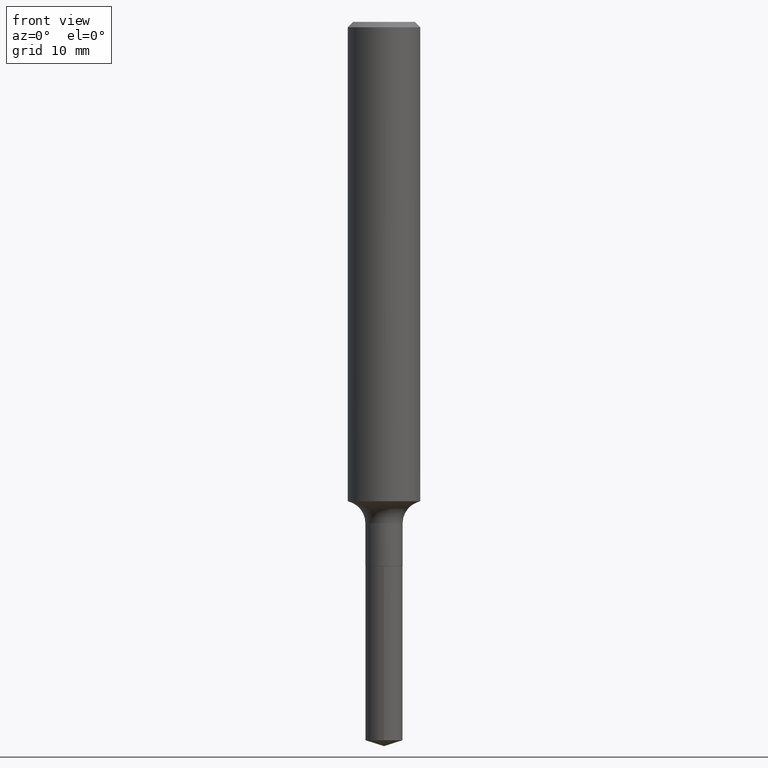
[diagram: clean part render]
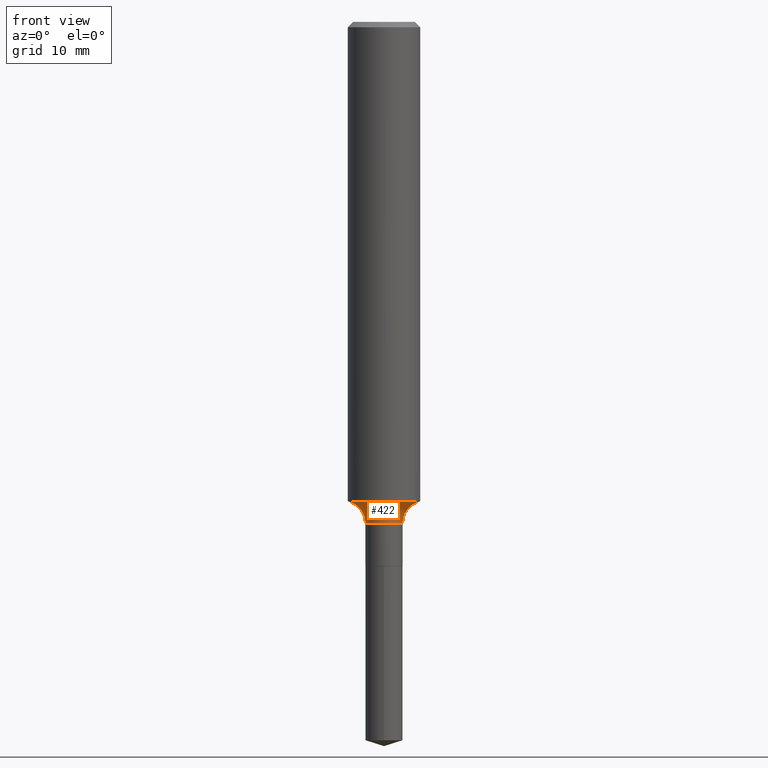
[diagram: same view with one face highlighted and labeled with its STEP entity id]
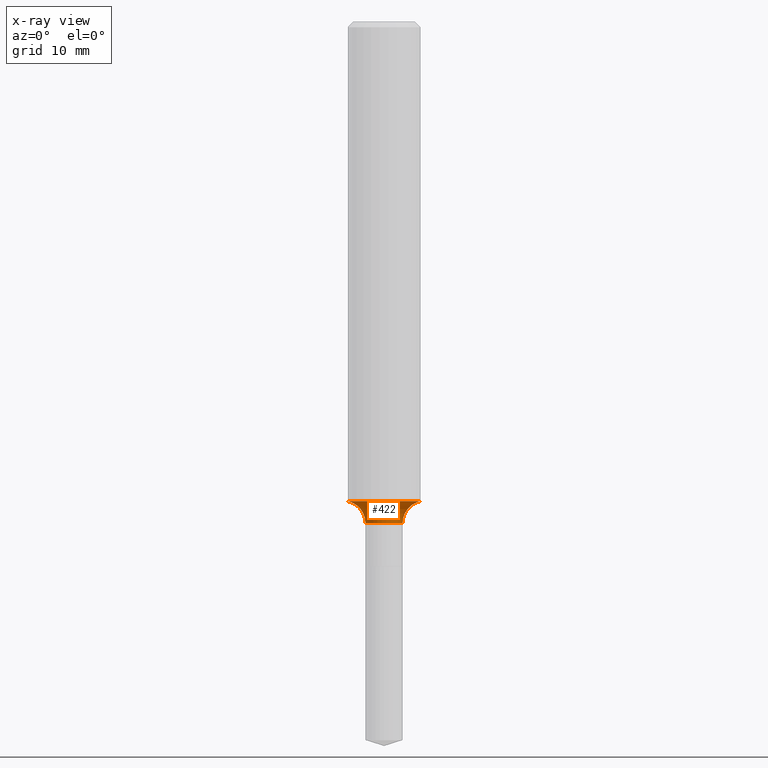
[diagram: x-ray of the same camera — body ghosted, the highlighted face saturated]
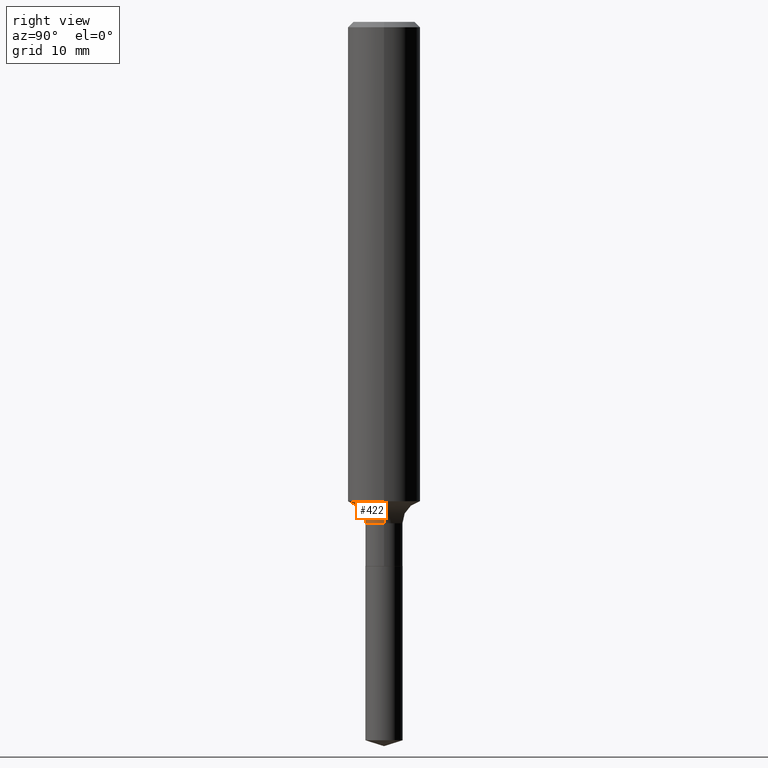
[diagram: same view with one face highlighted and labeled with its STEP entity id]
A machine part, front view. The second image highlights one B-rep face of the part: STEP entity #422.
The next image is the same camera in x-ray: the body ghosted, the highlighted face saturated — about 0% of this face is hidden behind the body in this view.
A second angle (right view) of the same face is appended — the face is thin or edge-on in the first view.
In plain terms, the highlighted toroidal blend (fillet) surface has major radius 3.6131 mm and minor (blend) radius 1.9812 mm.
Its self-contained STEP definition (entity closure, byte-faithful):
#4 = CARTESIAN_POINT ( 'NONE',  ( 0.06424999999999997380, -6.491362105177175250E-15, -1.730700000000000127 ) ) ;
#12 = EDGE_CURVE ( 'NONE', #311, #251, #222, .T. ) ;
#14 = ORIENTED_EDGE ( 'NONE', *, *, #242, .F. ) ;
#28 = CARTESIAN_POINT ( 'NONE',  ( 4.046349384515295800E-29, -5.777114527383200552E-15, -1.654631363230303576 ) ) ;
#48 = CIRCLE ( 'NONE', #214, 0.07800000000000006928 ) ;
#51 = EDGE_LOOP ( 'NONE', ( #257, #137, #60, #14 ) ) ;
#60 = ORIENTED_EDGE ( 'NONE', *, *, #220, .T. ) ;
#82 = AXIS2_PLACEMENT_3D ( 'NONE', #315, #359, #467 ) ;
#137 = ORIENTED_EDGE ( 'NONE', *, *, #355, .T. ) ;
#149 = DIRECTION ( 'NONE',  ( -1.000000000000000000, 7.105427357601005014E-15, 0.000000000000000000 ) ) ;
#164 = FACE_OUTER_BOUND ( 'NONE', #51, .T. ) ;
#177 = AXIS2_PLACEMENT_3D ( 'NONE', #384, #263, #347 ) ;
#178 = TOROIDAL_SURFACE ( 'NONE', #82, 0.1422499999999999598, 0.07800000000000006928 ) ;
#189 = CARTESIAN_POINT ( 'NONE',  ( 4.232372862864616324E-29, -6.042706753135832267E-15, -1.730700000000000127 ) ) ;
#190 = DIRECTION ( 'NONE',  ( -2.445468806185136597E-29, 3.491481338843145583E-15, 1.000000000000000000 ) ) ;
#191 = DIRECTION ( 'NONE',  ( -2.445468806185136597E-29, 3.491481338843145583E-15, 1.000000000000000000 ) ) ;
#214 = AXIS2_PLACEMENT_3D ( 'NONE', #274, #446, #149 ) ;
#220 = EDGE_CURVE ( 'NONE', #475, #226, #351, .T. ) ;
#222 = CIRCLE ( 'NONE', #329, 0.1250000000000001943 ) ;
#226 = VERTEX_POINT ( 'NONE', #4 ) ;
#242 = EDGE_CURVE ( 'NONE', #251, #226, #479, .T. ) ;
#251 = VERTEX_POINT ( 'NONE', #418 ) ;
#257 = ORIENTED_EDGE ( 'NONE', *, *, #12, .F. ) ;
#260 = DIRECTION ( 'NONE',  ( 1.000000000000000000, -6.982962677686272233E-15, 0.000000000000000000 ) ) ;
#263 = DIRECTION ( 'NONE',  ( -6.982962677686266711E-15, -1.000000000000000000, 3.491481338843145583E-15 ) ) ;
#265 = DIRECTION ( 'NONE',  ( 1.000000000000000000, -6.982962677686267499E-15, 0.000000000000000000 ) ) ;
#274 = CARTESIAN_POINT ( 'NONE',  ( -0.1422499999999999598, -5.031959711517090629E-15, -1.730700000000000127 ) ) ;
#294 = AXIS2_PLACEMENT_3D ( 'NONE', #189, #191, #260 ) ;
#311 = VERTEX_POINT ( 'NONE', #336 ) ;
#315 = CARTESIAN_POINT ( 'NONE',  ( 4.232372862864616324E-29, -6.042706753135832267E-15, -1.730700000000000127 ) ) ;
#329 = AXIS2_PLACEMENT_3D ( 'NONE', #28, #190, #265 ) ;
#336 = CARTESIAN_POINT ( 'NONE',  ( -0.1250000000000003053, -4.888936107683072164E-15, -1.654631363230303576 ) ) ;
#347 = DIRECTION ( 'NONE',  ( 1.000000000000000000, -6.982962677686264344E-15, 0.000000000000000000 ) ) ;
#351 = CIRCLE ( 'NONE', #294, 0.06424999999999997380 ) ;
#355 = EDGE_CURVE ( 'NONE', #311, #475, #48, .T. ) ;
#359 = DIRECTION ( 'NONE',  ( -2.445468806185136597E-29, 3.491481338843145583E-15, 1.000000000000000000 ) ) ;
#384 = CARTESIAN_POINT ( 'NONE',  ( 0.1422499999999999598, -7.036033194036703296E-15, -1.730700000000000127 ) ) ;
#418 = CARTESIAN_POINT ( 'NONE',  ( 0.1250000000000003053, -6.649984862093984679E-15, -1.654631363230303576 ) ) ;
#422 = ADVANCED_FACE ( 'NONE', ( #164 ), #178, .F. ) ;
#446 = DIRECTION ( 'NONE',  ( 7.105427357601001859E-15, 1.000000000000000000, -3.491481338843145583E-15 ) ) ;
#458 = CARTESIAN_POINT ( 'NONE',  ( -0.06424999999999997380, -5.843330646015765814E-15, -1.730700000000000127 ) ) ;
#467 = DIRECTION ( 'NONE',  ( 1.000000000000000000, -6.982962677686269077E-15, 4.883557194083113462E-29 ) ) ;
#475 = VERTEX_POINT ( 'NONE', #458 ) ;
#479 = CIRCLE ( 'NONE', #177, 0.07800000000000006928 ) ;